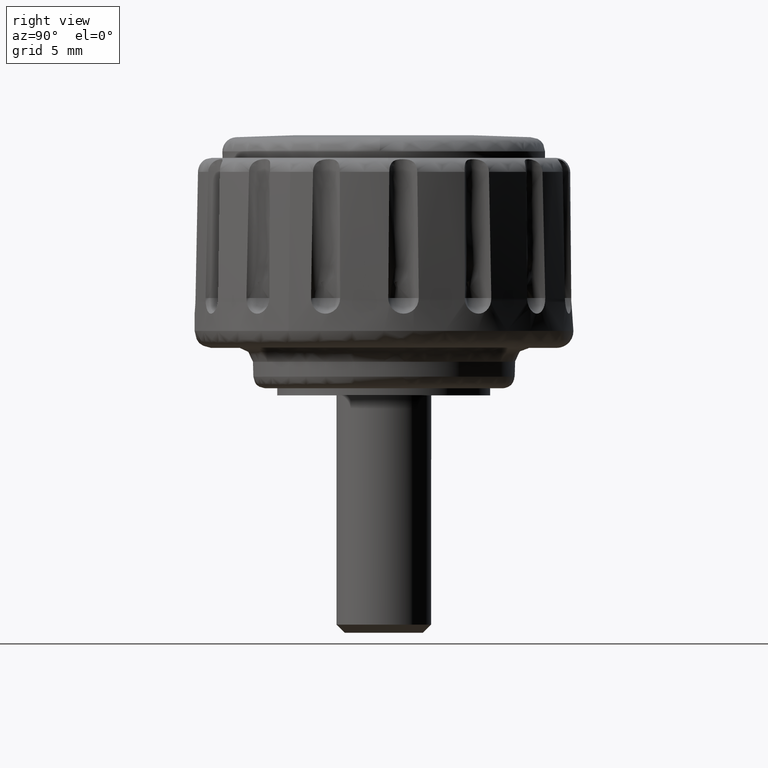
[diagram: clean part render]
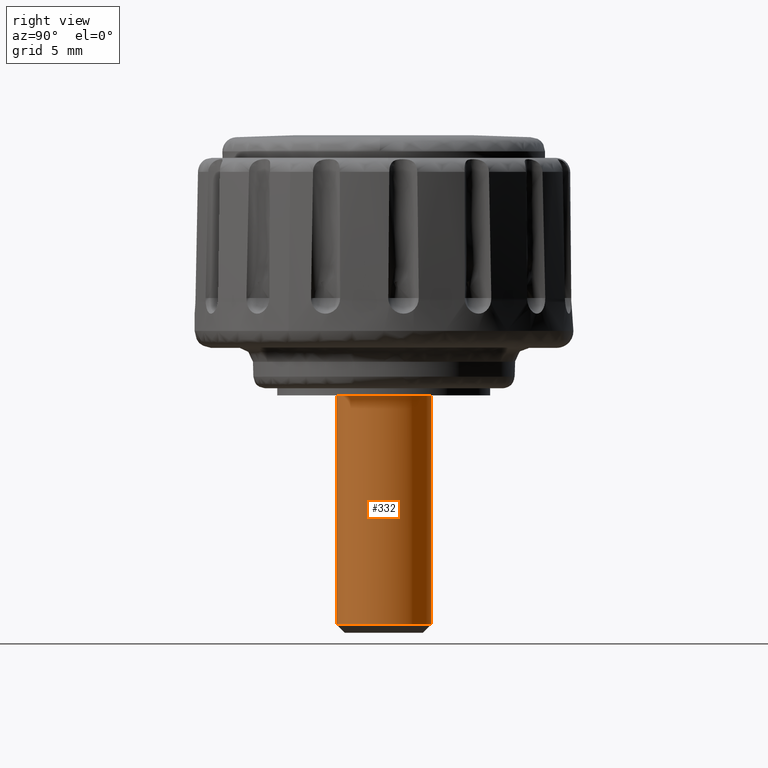
[diagram: same view with one face highlighted and labeled with its STEP entity id]
A machine part, right view. The second image highlights one B-rep face of the part: STEP entity #332.
In plain terms, the highlighted face is a freeform B-spline surface patch.
Its self-contained STEP definition (entity closure, byte-faithful):
#66=CARTESIAN_POINT('',(-0.236068484251974,1.986019050951671,-9.653779978417099));
#67=VERTEX_POINT('',#66);
#68=CARTESIAN_POINT('',(1.686080097728675,1.075701586892629,-9.653779978417088));
#69=VERTEX_POINT('',#68);
#70=CARTESIAN_POINT('',(-0.236068484251974,1.986019050951670,-9.653779978417099));
#71=CARTESIAN_POINT('',(-0.118448254400205,2.0,-9.653779978417100));
#72=CARTESIAN_POINT('',(0.0,2.0,-9.653779978417100));
#73=CARTESIAN_POINT('',(1.096387312029093,2.000000000000000,-9.653779978417100));
#74=CARTESIAN_POINT('',(1.686080097728674,1.075701586892629,-9.653779978417088));
#82=(BOUNDED_CURVE()B_SPLINE_CURVE(2,(#70,#71,#72,#73,#74),.UNSPECIFIED.,.F.,.U.)B_SPLINE_CURVE_WITH_KNOTS((3,2,3),(0.229562470973224,0.250000000000000,0.407950112627531),.UNSPECIFIED.)CURVE()GEOMETRIC_REPRESENTATION_ITEM()RATIONAL_B_SPLINE_CURVE((0.956026749204638,0.976055945355017,1.0,0.814949932402300,0.863729296954912))REPRESENTATION_ITEM(''));
#83=EDGE_CURVE('',#67,#69,#82,.T.);
#126=CARTESIAN_POINT('',(0.156918191537907,-1.993834667470538,-9.653779978406497));
#127=VERTEX_POINT('',#126);
#133=CARTESIAN_POINT('',(0.122097079080959,-1.996269596843046,-9.653779978417100));
#134=VERTEX_POINT('',#133);
#135=CARTESIAN_POINT('',(0.156918191537907,-1.993834667470538,-9.653779978406497));
#136=CARTESIAN_POINT('',(0.139518260008787,-1.995204071771188,-9.653779978417102));
#137=CARTESIAN_POINT('',(0.122097079080959,-1.996269596843046,-9.653779978417100));
#145=(BOUNDED_CURVE()B_SPLINE_CURVE(2,(#135,#136,#137),.UNSPECIFIED.,.F.,.U.)B_SPLINE_CURVE_WITH_KNOTS((3,3),(0.736331300618774,0.739332962240025),.UNSPECIFIED.)CURVE()GEOMETRIC_REPRESENTATION_ITEM()RATIONAL_B_SPLINE_CURVE((0.969723356142614,0.972855475548329,0.976072041669038))REPRESENTATION_ITEM(''));
#146=EDGE_CURVE('',#127,#134,#145,.T.);
#199=CARTESIAN_POINT('',(2.0,0.0,-9.653779978417100));
#200=VERTEX_POINT('',#199);
#201=CARTESIAN_POINT('',(1.686080097728674,1.075701586892629,-9.653779978417088));
#202=CARTESIAN_POINT('',(2.000000000000000,0.583656110758806,-9.653779978417100));
#203=CARTESIAN_POINT('',(2.0,0.0,-9.653779978417100));
#211=(BOUNDED_CURVE()B_SPLINE_CURVE(2,(#201,#202,#203),.UNSPECIFIED.,.F.,.U.)B_SPLINE_CURVE_WITH_KNOTS((3,3),(0.407950112627531,0.500000000000000),.UNSPECIFIED.)CURVE()GEOMETRIC_REPRESENTATION_ITEM()RATIONAL_B_SPLINE_CURVE((0.863729296954912,0.892156848784247,1.0))REPRESENTATION_ITEM(''));
#212=EDGE_CURVE('',#69,#200,#211,.T.);
#214=CARTESIAN_POINT('',(2.0,0.0,-9.653779978417100));
#215=CARTESIAN_POINT('',(2.000000000000000,-1.848780983165048,-9.653779978417100));
#216=CARTESIAN_POINT('',(0.156918191537907,-1.993834667470538,-9.653779978406497));
#224=(BOUNDED_CURVE()B_SPLINE_CURVE(2,(#214,#215,#216),.UNSPECIFIED.,.F.,.U.)B_SPLINE_CURVE_WITH_KNOTS((3,3),(0.500000000000000,0.736331300618775),.UNSPECIFIED.)CURVE()GEOMETRIC_REPRESENTATION_ITEM()RATIONAL_B_SPLINE_CURVE((1.0,0.723120658621589,0.969723356142616))REPRESENTATION_ITEM(''));
#225=EDGE_CURVE('',#200,#127,#224,.T.);
#260=CARTESIAN_POINT('',(-0.236068469313517,1.986019052727332,0.241344499460428));
#261=CARTESIAN_POINT('',(-0.179229457275955,1.992775230897211,0.241344499460428));
#262=CARTESIAN_POINT('',(-0.122097079069714,1.996269596843733,0.241344499460428));
#263=CARTESIAN_POINT('',(1.874172517774020,2.118366675913447,0.241344499460428));
#264=CARTESIAN_POINT('',(1.996269596843733,0.122097079069714,0.241344499460428));
#265=CARTESIAN_POINT('',(2.118366675913447,-1.874172517774020,0.241344499460428));
#266=CARTESIAN_POINT('',(0.122097079069714,-1.996269596843733,0.241344499460428));
#267=CARTESIAN_POINT('',(-0.236068469313517,1.986019052727332,-9.901158090364042));
#268=CARTESIAN_POINT('',(-0.179229457275955,1.992775230897211,-9.901158090364040));
#269=CARTESIAN_POINT('',(-0.122097079069714,1.996269596843733,-9.901158090364040));
#270=CARTESIAN_POINT('',(1.874172517774020,2.118366675913447,-9.901158090364040));
#271=CARTESIAN_POINT('',(1.996269596843733,0.122097079069714,-9.901158090364040));
#272=CARTESIAN_POINT('',(2.118366675913447,-1.874172517774020,-9.901158090364040));
#273=CARTESIAN_POINT('',(0.122097079069714,-1.996269596843733,-9.901158090364040));
#281=(BOUNDED_SURFACE()B_SPLINE_SURFACE(2,1,((#260,#267),(#261,#268),(#262,#269),(#263,#270),(#264,#271),(#265,#272),(#266,#273)),.UNSPECIFIED.,.F.,.F.,.U.)B_SPLINE_SURFACE_WITH_KNOTS((3,2,2,3),(2,2),(0.0,0.132548339959391,3.446256838944149,6.759965337928908),(0.0,10.142502589824471),.UNSPECIFIED.)GEOMETRIC_REPRESENTATION_ITEM()RATIONAL_B_SPLINE_SURFACE(((0.977505800795127,0.977505800795127),(0.988284271247462,0.988284271247462),(1.0,1.0),(0.707106781186548,0.707106781186548),(1.0,1.0),(0.707106781186548,0.707106781186548),(1.0,1.0)))REPRESENTATION_ITEM('')SURFACE());
#282=ORIENTED_EDGE('',*,*,#83,.F.);
#283=CARTESIAN_POINT('',(-0.236068484251974,1.986019050951671,3.407314E-016));
#284=VERTEX_POINT('',#283);
#285=CARTESIAN_POINT('',(-0.236068484251974,1.986019050951671,3.407314E-016));
#286=CARTESIAN_POINT('',(-0.236068484251974,1.986019050951671,-9.653779978417099));
#287=QUASI_UNIFORM_CURVE('',1,(#285,#286),.UNSPECIFIED.,.F.,.U.);
#288=EDGE_CURVE('',#284,#67,#287,.T.);
#289=ORIENTED_EDGE('',*,*,#288,.F.);
#290=CARTESIAN_POINT('',(2.0,0.0,0.0));
#291=VERTEX_POINT('',#290);
#292=CARTESIAN_POINT('',(-0.236068484251974,1.986019050951670,3.407314E-016));
#293=CARTESIAN_POINT('',(-0.118448254400205,2.0,0.0));
#294=CARTESIAN_POINT('',(0.0,2.0,0.0));
#295=CARTESIAN_POINT('',(2.000000000000000,2.000000000000000,0.0));
#296=CARTESIAN_POINT('',(2.0,0.0,0.0));
#304=(BOUNDED_CURVE()B_SPLINE_CURVE(2,(#292,#293,#294,#295,#296),.UNSPECIFIED.,.F.,.U.)B_SPLINE_CURVE_WITH_KNOTS((3,2,3),(0.229562470973224,0.250000000000000,0.500000000000000),.UNSPECIFIED.)CURVE()GEOMETRIC_REPRESENTATION_ITEM()RATIONAL_B_SPLINE_CURVE((0.956026749204638,0.976055945355017,1.0,0.707106781186548,1.0))REPRESENTATION_ITEM(''));
#305=EDGE_CURVE('',#284,#291,#304,.T.);
#306=ORIENTED_EDGE('',*,*,#305,.T.);
#307=CARTESIAN_POINT('',(0.122097079080959,-1.996269596843046,3.330669E-016));
#308=VERTEX_POINT('',#307);
#309=CARTESIAN_POINT('',(2.0,0.0,0.0));
#310=CARTESIAN_POINT('',(2.000000000000000,-1.881412133790152,0.0));
#311=CARTESIAN_POINT('',(0.122097079080959,-1.996269596843046,3.330669E-016));
#319=(BOUNDED_CURVE()B_SPLINE_CURVE(2,(#309,#310,#311),.UNSPECIFIED.,.F.,.U.)B_SPLINE_CURVE_WITH_KNOTS((3,3),(0.500000000000000,0.739332962240024),.UNSPECIFIED.)CURVE()GEOMETRIC_REPRESENTATION_ITEM()RATIONAL_B_SPLINE_CURVE((1.0,0.719603993285443,0.976072041669035))REPRESENTATION_ITEM(''));
#320=EDGE_CURVE('',#291,#308,#319,.T.);
#321=ORIENTED_EDGE('',*,*,#320,.T.);
#322=CARTESIAN_POINT('',(0.122097079080959,-1.996269596843046,3.330669E-016));
#323=CARTESIAN_POINT('',(0.122097079080959,-1.996269596843046,-9.653779978417100));
#324=QUASI_UNIFORM_CURVE('',1,(#322,#323),.UNSPECIFIED.,.F.,.U.);
#325=EDGE_CURVE('',#308,#134,#324,.T.);
#326=ORIENTED_EDGE('',*,*,#325,.T.);
#327=ORIENTED_EDGE('',*,*,#146,.F.);
#328=ORIENTED_EDGE('',*,*,#225,.F.);
#329=ORIENTED_EDGE('',*,*,#212,.F.);
#330=EDGE_LOOP('',(#282,#289,#306,#321,#326,#327,#328,#329));
#331=FACE_OUTER_BOUND('',#330,.T.);
#332=ADVANCED_FACE('',(#331),#281,.T.);